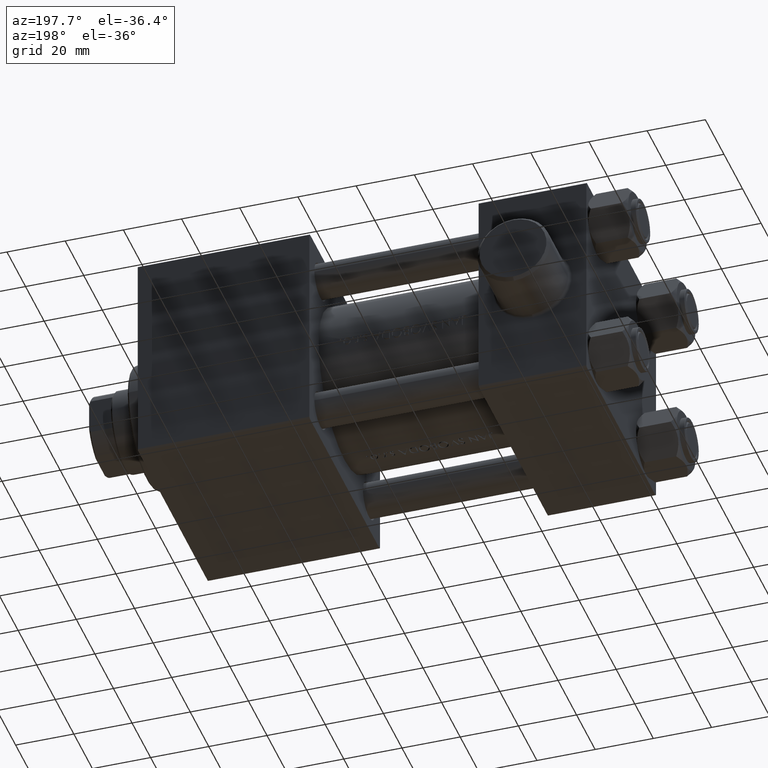
[diagram: clean part render]
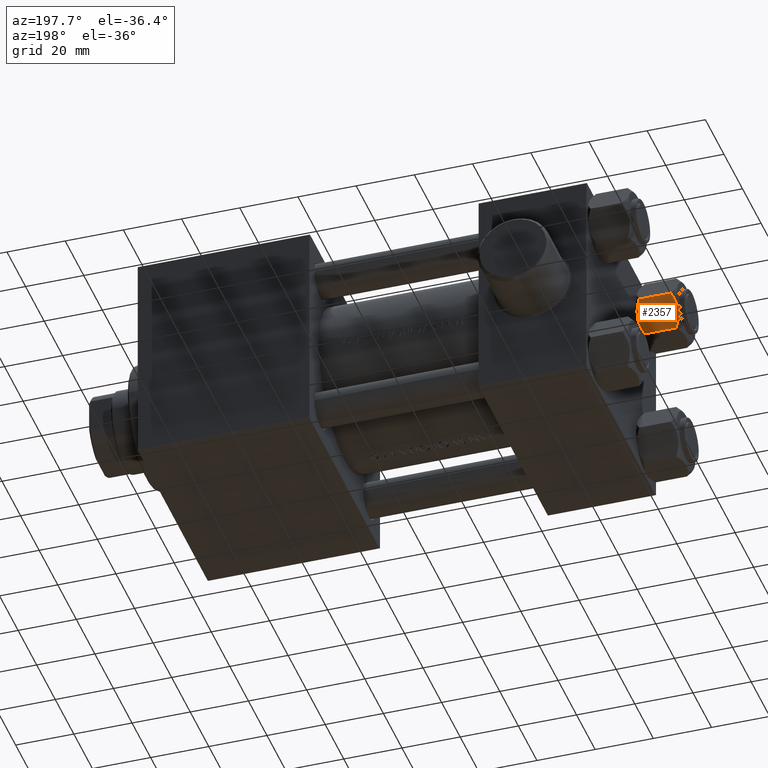
[diagram: same view with one face highlighted and labeled with its STEP entity id]
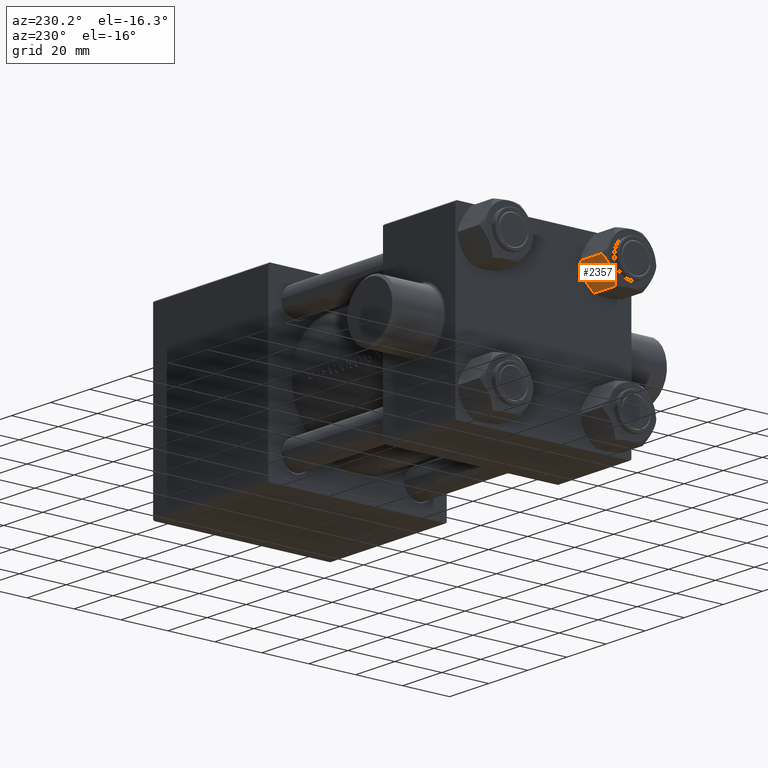
[diagram: same view with one face highlighted and labeled with its STEP entity id]
A machine part, auxiliary view. The second image highlights one B-rep face of the part: STEP entity #2357.
A second angle (auxiliary view) of the same face is appended — the face is thin or edge-on in the first view.
In plain terms, the highlighted planar face has unit normal (0, -0.866, 0.5).
Its self-contained STEP definition (entity closure, byte-faithful):
#13 = CARTESIAN_POINT ( 'NONE',  ( 0.000000000000000000, 10.06321519197518022, 0.000000000000000000 ) ) ;
#172 = EDGE_CURVE ( 'NONE', #10912, #5845, #27189, .T. ) ;
#468 = CARTESIAN_POINT ( 'NONE',  ( -0.2543996698847471039, 10.06321519197517844, 1.789568859311522647E-15 ) ) ;
#1780 = EDGE_CURVE ( 'NONE', #3284, #6785, #9195, .T. ) ;
#2357 = ADVANCED_FACE ( 'NONE', ( #19701 ), #44282, .F. ) ;
#2371 = DIRECTION ( 'NONE',  ( 0.000000000000000000, -1.000000000000000000, 0.000000000000000000 ) ) ;
#3076 = ORIENTED_EDGE ( 'NONE', *, *, #1780, .F. ) ;
#3186 = CARTESIAN_POINT ( 'NONE',  ( -2.013954290287967019, 10.06321519197518022, -13.84298883202399821 ) ) ;
#3284 = VERTEX_POINT ( 'NONE', #29440 ) ;
#3384 = CARTESIAN_POINT ( 'NONE',  ( -5.809999999999997833, 10.06321519197518022, -14.00000000000000000 ) ) ;
#3408 = CARTESIAN_POINT ( 'NONE',  ( 0.000000000000000000, 10.06321519197518022, -14.00000000000000000 ) ) ;
#3498 = CARTESIAN_POINT ( 'NONE',  ( 3.958929922320420403, 10.06321519197517844, -0.7421398502353995230 ) ) ;
#4062 = DIRECTION ( 'NONE',  ( -0.000000000000000000, -0.000000000000000000, 1.000000000000000000 ) ) ;
#4690 = EDGE_CURVE ( 'NONE', #3284, #45778, #39890, .T. ) ;
#4780 = CARTESIAN_POINT ( 'NONE',  ( 0.5112014849988876231, 10.06321519197518022, -13.99019602057108536 ) ) ;
#5845 = VERTEX_POINT ( 'NONE', #43559 ) ;
#6785 = VERTEX_POINT ( 'NONE', #20839 ) ;
#7037 = CARTESIAN_POINT ( 'NONE',  ( -2.508586450168038162, 10.06321519197518199, -0.2975752632032285794 ) ) ;
#7261 = CARTESIAN_POINT ( 'NONE',  ( -3.960942496020600778, 10.06321519197518199, -0.7115728323610410744 ) ) ;
#7465 = CARTESIAN_POINT ( 'NONE',  ( 5.810000000000000497, 10.06321519197518022, -1.556784808024815892 ) ) ;
#8075 = CARTESIAN_POINT ( 'NONE',  ( 5.810000000000000497, 10.06321519197518022, -12.44321519197518278 ) ) ;
#8744 = CARTESIAN_POINT ( 'NONE',  ( 1.772424303831127146, 10.06321519197517667, -13.86611290782775896 ) ) ;
#9195 = B_SPLINE_CURVE_WITH_KNOTS ( 'NONE', 3,
 ( #28676, #24246, #21198, #27992, #10661, #3186, #35480, #3408 ),
 .UNSPECIFIED., .F., .F.,
 ( 4, 2, 2, 4 ),
 ( 0.01467889604968878464, 0.01619420351931634069, 0.01770951098894389675, 0.02074012592819901232 ),
 .UNSPECIFIED. ) ;
#10661 = CARTESIAN_POINT ( 'NONE',  ( -3.474497094393252716, 10.06321519197518022, -13.42730390989572342 ) ) ;
#10751 = CARTESIAN_POINT ( 'NONE',  ( 5.359707691559672860, 10.06321519197517844, -1.331638653804651629 ) ) ;
#10912 = VERTEX_POINT ( 'NONE', #18048 ) ;
#11199 = ORIENTED_EDGE ( 'NONE', *, *, #4690, .T. ) ;
#12723 = CARTESIAN_POINT ( 'NONE',  ( 5.810000000000000497, 10.06321519197518022, -12.44321519197518278 ) ) ;
#14193 = VECTOR ( 'NONE', #4062, 1000.000000000000000 ) ;
#15764 = CARTESIAN_POINT ( 'NONE',  ( 4.908816193182378385, 10.06321519197517667, -12.89380709538398939 ) ) ;
#16224 = CARTESIAN_POINT ( 'NONE',  ( 0.2543996698847478255, 10.06321519197517844, -14.00000000000000000 ) ) ;
#17768 = CARTESIAN_POINT ( 'NONE',  ( 2.013954290287966575, 10.06321519197518022, -0.1570111679759973733 ) ) ;
#17788 = CARTESIAN_POINT ( 'NONE',  ( -4.908816193182376608, 10.06321519197518199, -1.106192904616006167 ) ) ;
#18024 = CARTESIAN_POINT ( 'NONE',  ( -1.772424303831120929, 10.06321519197518022, -0.1338870921722370433 ) ) ;
#18048 = CARTESIAN_POINT ( 'NONE',  ( 5.810000000000000497, 10.06321519197518022, -1.556784808024815892 ) ) ;
#18365 = CARTESIAN_POINT ( 'NONE',  ( 3.474497094393252272, 10.06321519197518022, -0.5726960901042741359 ) ) ;
#19701 = FACE_OUTER_BOUND ( 'NONE', #43662, .T. ) ;
#20839 = CARTESIAN_POINT ( 'NONE',  ( 0.000000000000000000, 10.06321519197518022, -14.00000000000000000 ) ) ;
#21008 = B_SPLINE_CURVE_WITH_KNOTS ( 'NONE', 3,
 ( #44786, #16224, #4780, #23490, #8744, #27225, #34020, #15764, #12723 ),
 .UNSPECIFIED., .F., .F.,
 ( 4, 2, 1, 2, 4 ),
 ( 0.02074012592819901232, 0.02149589804477577970, 0.02225167016135254361, 0.02376321439450607489, 0.02678630286081313400 ),
 .UNSPECIFIED. ) ;
#21198 = CARTESIAN_POINT ( 'NONE',  ( -4.900668367960792082, 10.06321519197518199, -12.87844331629022676 ) ) ;
#21270 = EDGE_CURVE ( 'NONE', #5845, #45778, #24894, .T. ) ;
#21711 = VECTOR ( 'NONE', #33495, 1000.000000000000000 ) ;
#21748 = CARTESIAN_POINT ( 'NONE',  ( 4.900668367960795635, 10.06321519197518199, -1.121556683709773239 ) ) ;
#22511 = ORIENTED_EDGE ( 'NONE', *, *, #21270, .F. ) ;
#23270 = VERTEX_POINT ( 'NONE', #8075 ) ;
#23427 = LINE ( 'NONE', #40999, #21711 ) ;
#23490 = CARTESIAN_POINT ( 'NONE',  ( 1.018274738099083976, 10.06321519197517844, -13.95177257919928948 ) ) ;
#24246 = CARTESIAN_POINT ( 'NONE',  ( -5.359707691559671083, 10.06321519197517844, -12.66836134619534526 ) ) ;
#24822 = CARTESIAN_POINT ( 'NONE',  ( -1.018274738099083310, 10.06321519197517667, -0.04822742080070820114 ) ) ;
#24894 = B_SPLINE_CURVE_WITH_KNOTS ( 'NONE', 3,
 ( #13, #468, #25044, #24822, #18024, #7037, #7261, #17788, #32523 ),
 .UNSPECIFIED., .F., .F.,
 ( 4, 2, 1, 2, 4 ),
 ( 0.02074012592819901579, 0.02149589804477577970, 0.02225167016135254361, 0.02376321439450607489, 0.02678630286081313400 ),
 .UNSPECIFIED. ) ;
#25044 = CARTESIAN_POINT ( 'NONE',  ( -0.5112014849988875120, 10.06321519197518199, -0.009803979428912690947 ) ) ;
#26347 = EDGE_CURVE ( 'NONE', #6785, #23270, #21008, .T. ) ;
#26693 = EDGE_CURVE ( 'NONE', #23270, #10912, #23427, .T. ) ;
#27189 = B_SPLINE_CURVE_WITH_KNOTS ( 'NONE', 3,
 ( #7465, #10751, #21748, #3498, #18365, #17768, #28086, #43504 ),
 .UNSPECIFIED., .F., .F.,
 ( 4, 2, 2, 4 ),
 ( 0.01467889604968878811, 0.01619420351931634416, 0.01770951098894390369, 0.02074012592819901579 ),
 .UNSPECIFIED. ) ;
#27225 = CARTESIAN_POINT ( 'NONE',  ( 2.508586450168038162, 10.06321519197517844, -13.70242473679676642 ) ) ;
#27992 = CARTESIAN_POINT ( 'NONE',  ( -3.958929922320416850, 10.06321519197517844, -13.25786014976459803 ) ) ;
#28086 = CARTESIAN_POINT ( 'NONE',  ( 1.020132157807626561, 10.06321519197517844, 1.504330514323637599E-15 ) ) ;
#28676 = CARTESIAN_POINT ( 'NONE',  ( -5.809999999999997833, 10.06321519197518022, -12.44321519197518455 ) ) ;
#29440 = CARTESIAN_POINT ( 'NONE',  ( -5.809999999999997833, 10.06321519197518022, -12.44321519197518455 ) ) ;
#30685 = DIRECTION ( 'NONE',  ( 0.000000000000000000, -0.000000000000000000, -1.000000000000000000 ) ) ;
#30934 = ORIENTED_EDGE ( 'NONE', *, *, #26347, .F. ) ;
#32523 = CARTESIAN_POINT ( 'NONE',  ( -5.809999999999997833, 10.06321519197518022, -1.556784808024814115 ) ) ;
#32949 = ORIENTED_EDGE ( 'NONE', *, *, #172, .F. ) ;
#33495 = DIRECTION ( 'NONE',  ( -0.000000000000000000, -0.000000000000000000, 1.000000000000000000 ) ) ;
#34020 = CARTESIAN_POINT ( 'NONE',  ( 3.960942496020600778, 10.06321519197518022, -13.28842716763895737 ) ) ;
#34432 = CARTESIAN_POINT ( 'NONE',  ( -5.809999999999997833, 10.06321519197518022, -14.00000000000000000 ) ) ;
#35480 = CARTESIAN_POINT ( 'NONE',  ( -1.020132157807625006, 10.06321519197517844, -13.99999999999999822 ) ) ;
#38582 = CARTESIAN_POINT ( 'NONE',  ( -5.809999999999997833, 10.06321519197518022, -1.556784808024814115 ) ) ;
#39027 = ORIENTED_EDGE ( 'NONE', *, *, #26693, .F. ) ;
#39890 = LINE ( 'NONE', #3384, #14193 ) ;
#40999 = CARTESIAN_POINT ( 'NONE',  ( 5.810000000000000497, 10.06321519197518022, -14.00000000000000000 ) ) ;
#41885 = AXIS2_PLACEMENT_3D ( 'NONE', #34432, #2371, #30685 ) ;
#43504 = CARTESIAN_POINT ( 'NONE',  ( 0.000000000000000000, 10.06321519197518022, 0.000000000000000000 ) ) ;
#43559 = CARTESIAN_POINT ( 'NONE',  ( 0.000000000000000000, 10.06321519197518022, 0.000000000000000000 ) ) ;
#43662 = EDGE_LOOP ( 'NONE', ( #3076, #11199, #22511, #32949, #39027, #30934 ) ) ;
#44282 = PLANE ( 'NONE',  #41885 ) ;
#44786 = CARTESIAN_POINT ( 'NONE',  ( 0.000000000000000000, 10.06321519197518022, -14.00000000000000000 ) ) ;
#45778 = VERTEX_POINT ( 'NONE', #38582 ) ;